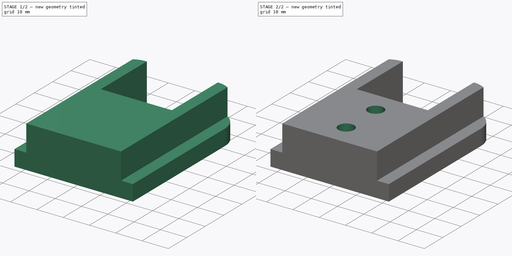
[diagram: build sequence overview — one tinted view per stage of 2, left to right]
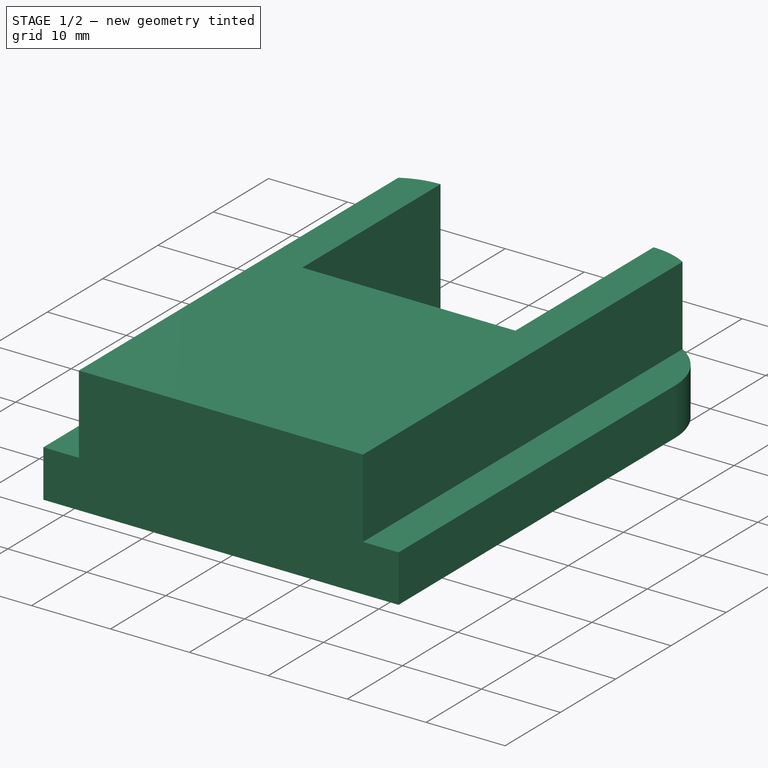
[diagram: stage 1 of 2 — iso view after this stage's code; geometry added in this stage tinted green]
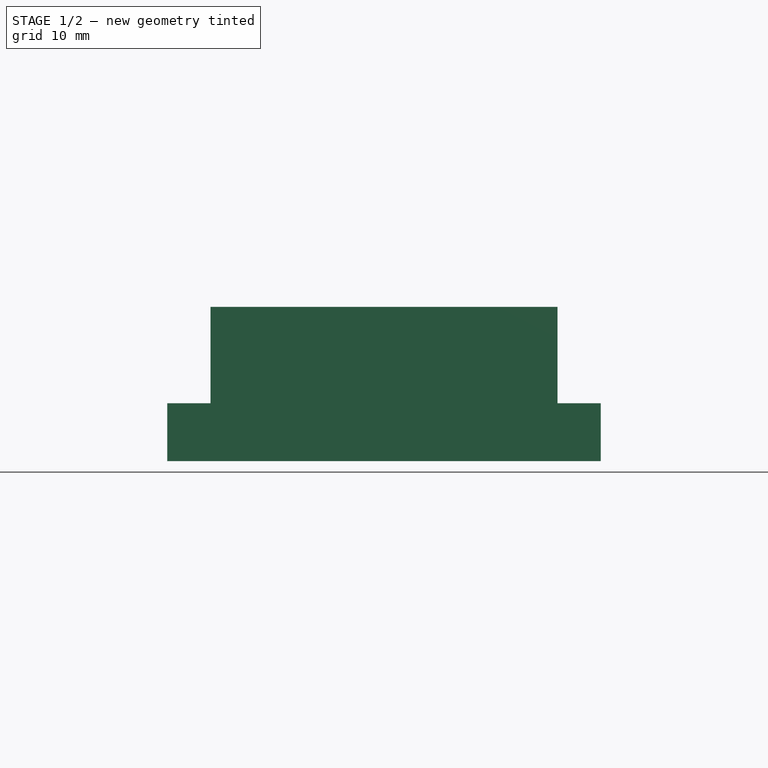
[diagram: stage 1 of 2 — front view after this stage's code; geometry added in this stage tinted green]
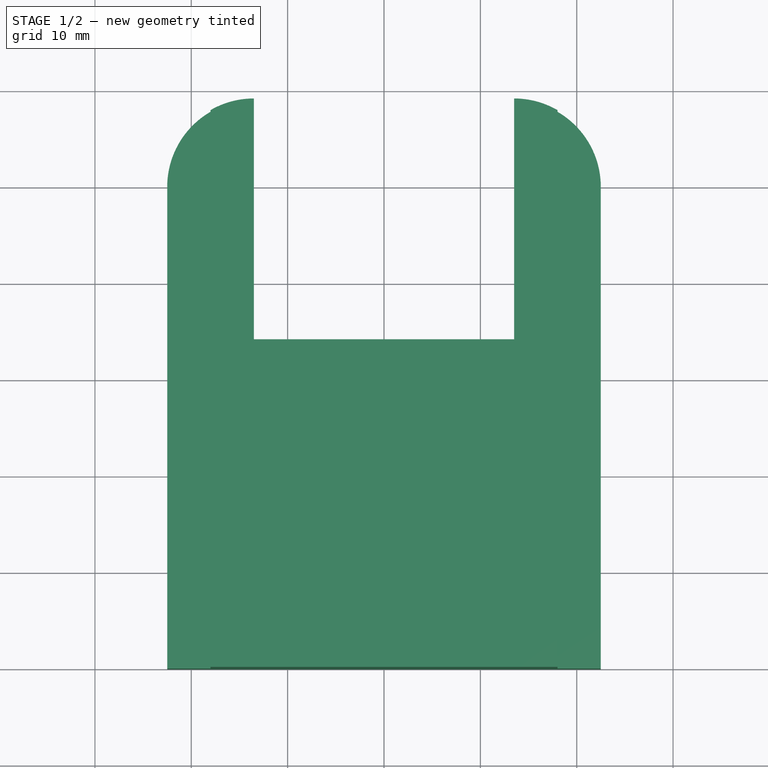
[diagram: stage 1 of 2 — top view after this stage's code; geometry added in this stage tinted green]
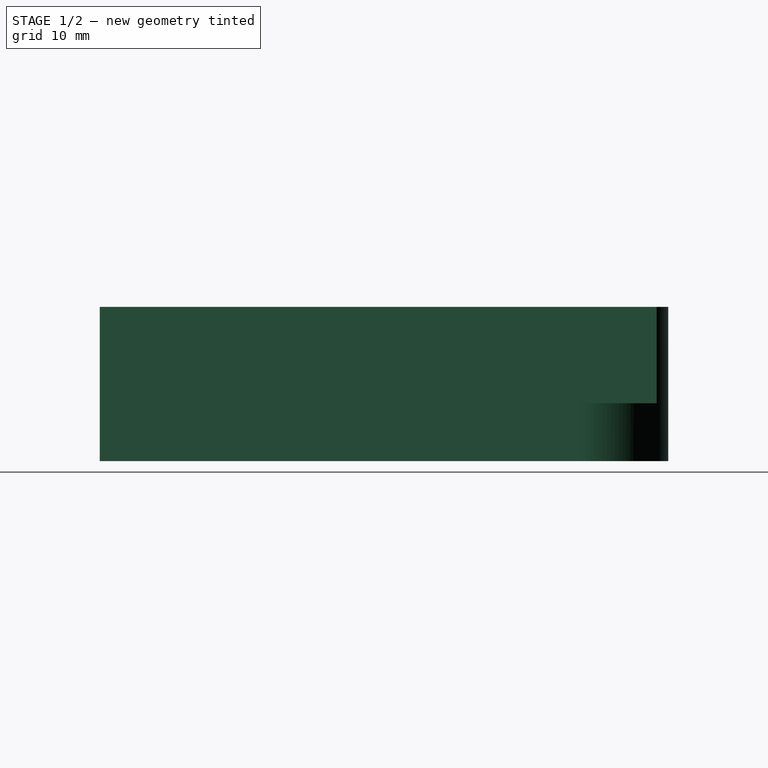
[diagram: stage 1 of 2 — right view after this stage's code; geometry added in this stage tinted green]
FCSTD DOCUMENT  (FreeCAD 0.20R29603 (Git))
Label: MilwaukeeToolHolder
License: All rights reserved
LicenseURL: http://en.wikipedia.org/wiki/All_rights_reserved
objects: Sketcher::SketchObject×3, PartDesign::Pad×2, PartDesign::Hole×1, PartDesign::LinearPattern×1, PartDesign::Body×1
note: 11 computed .brp shape members not serialized (recipe doc carries the construction recipe); baked Part::Feature solids carry a one-line shape summary decoded from their .brp

FEATURE [Sketcher::SketchObject] Sketch
  FullyConstrained = false
  sketch-geometry (9):
    g0: LineSegment StartX=-22.5 StartY=0 StartZ=0 EndX=22.5 EndY=0 EndZ=0
    g1: LineSegment StartX=22.5 StartY=0 StartZ=0 EndX=22.5 EndY=50 EndZ=0
    g2: LineSegment StartX=22.5 StartY=50 StartZ=0 EndX=-22.5 EndY=50 EndZ=0
    g3: LineSegment StartX=-22.5 StartY=50 StartZ=0 EndX=-22.5 EndY=0 EndZ=0
    g4: ArcOfCircle CenterX=-13.5 CenterY=50 CenterZ=0 NormalX=0 NormalY=0 NormalZ=1 AngleXU=0 Radius=9 StartAngle=1.5708 EndAngle=3.14159
    g5: ArcOfCircle CenterX=13.5 CenterY=50 CenterZ=0 NormalX=0 NormalY=0 NormalZ=1 AngleXU=0 Radius=9 StartAngle=7e-16 EndAngle=1.5708
    g6: LineSegment StartX=13.5 StartY=59 StartZ=0 EndX=13.5 EndY=34 EndZ=0
    g7: LineSegment StartX=13.5 StartY=34 StartZ=0 EndX=-13.5 EndY=34 EndZ=0
    g8: LineSegment StartX=-13.5 StartY=34 StartZ=0 EndX=-13.5 EndY=59 EndZ=0
  constraints (26):
    c: Coincident(g0,g1)
    c: Coincident(g1,g2)
    c: Coincident(g3,g0)
    c: Horizontal(g2)
    c: Vertical(g1)
    c: Vertical(g3)
    c: PointOnObject(g0,g-1)
    c: DistanceX(g0,g0) = 45
    c: Symmetric(g0,g0,g-2)
    c: DistanceY(g3,g3) = 50
    c: PointOnObject(g4,g2)
    c: Radius(g4) = 9
    c: Tangent(g4,g3) = -1.5708
    c: Vertical(g4,g4)
    c: PointOnObject(g5,g2)
    c: PointOnObject(g5,g1)
    c: Tangent(g5,g1,g5) = -1.5708
    c: Symmetric(g4,g5,g-2)
    c: Coincident(g6,g7)
    c: Coincident(g7,g8)
    c: Horizontal(g7)
    c: Vertical(g6)
    c: Vertical(g8)
    c: Coincident(g6,g5)
    c: DistanceY(g6,g5) = 25
    c: Coincident(g8,g4)
FEATURE [PartDesign::Pad] Pad  label="BatteryLid"
  Direction = (0,0,1)
  Length = 6
  Length2 = 10
  Profile = -> Sketch
  ReferenceAxis = -> Sketch [N_Axis]
  Type = 0
FEATURE [Sketcher::SketchObject] Sketch001
  ExternalGeometry = -> [Pad]
  FullyConstrained = true
  MapMode = 5
  Placement = pos=(0,0,6) rot=(0,0,1;0rad)
  Support = -> [Pad]
  sketch-geometry (11):
    g0: LineSegment StartX=-18 StartY=0 StartZ=0 EndX=18 EndY=0 EndZ=0
    g1: LineSegment StartX=18 StartY=0 StartZ=0 EndX=18 EndY=34 EndZ=0
    g2: LineSegment StartX=18 StartY=34 StartZ=0 EndX=-18 EndY=34 EndZ=0
    g3: LineSegment StartX=-18 StartY=34 StartZ=0 EndX=-18 EndY=0 EndZ=0
    g4: LineSegment StartX=-13.5 StartY=59 StartZ=0 EndX=-13.5 EndY=34 EndZ=0
    g5: LineSegment StartX=13.5 StartY=34 StartZ=0 EndX=13.5 EndY=59 EndZ=0
    g6: LineSegment StartX=18 StartY=57.7942 StartZ=0 EndX=18 EndY=34 EndZ=0
    g7: LineSegment StartX=-18 StartY=57.7942 StartZ=0 EndX=-18 EndY=34 EndZ=0
    g8: ArcOfCircle CenterX=-13.5 CenterY=50 CenterZ=0 NormalX=0 NormalY=0 NormalZ=1 AngleXU=0 Radius=9 StartAngle=1.5708 EndAngle=2.0944
    g9: ArcOfCircle CenterX=13.5 CenterY=50 CenterZ=0 NormalX=0 NormalY=0 NormalZ=1 AngleXU=0 Radius=9 StartAngle=1.0472 EndAngle=1.5708
    g10: LineSegment StartX=-13.5 StartY=34 StartZ=0 EndX=13.5 EndY=34 EndZ=0
  constraints (27):
    c: Coincident(g0,g1)
    c: Coincident(g1,g2)
    c: Coincident(g2,g3)
    c: Coincident(g3,g0)
    c: Horizontal(g2)
    c: Vertical(g1)
    c: Vertical(g3)
    c: PointOnObject(g0,g-1)
    c: Symmetric(g0,g0,g-2)
    c: DistanceX(g0,g0) = 36
    c: DistanceY(g2,g-3) = 0
    c: Coincident(g4,g-3)
    c: Coincident(g5,g-3)
    c: Coincident(g6,g1)
    c: Vertical(g6)
    c: Coincident(g7,g3)
    c: Vertical(g7)
    c: Coincident(g8,g-4)
    c: Coincident(g8,g7)
    c: Coincident(g8,g4)
    c: Coincident(g9,g-5)
    c: Coincident(g9,g6)
    c: Coincident(g9,g5)
    c: Coincident(g5,g-5)
    c: Coincident(g4,g-4)
    c: Coincident(g10,g4)
    c: Coincident(g10,g5)
FEATURE [PartDesign::Pad] Pad001  label="Spacer"
  BaseFeature = -> Pad
  Direction = (0,0,1)
  Length = 10
  Length2 = 10
  Profile = -> Sketch001
  ReferenceAxis = -> Sketch001 [N_Axis]
  Type = 0
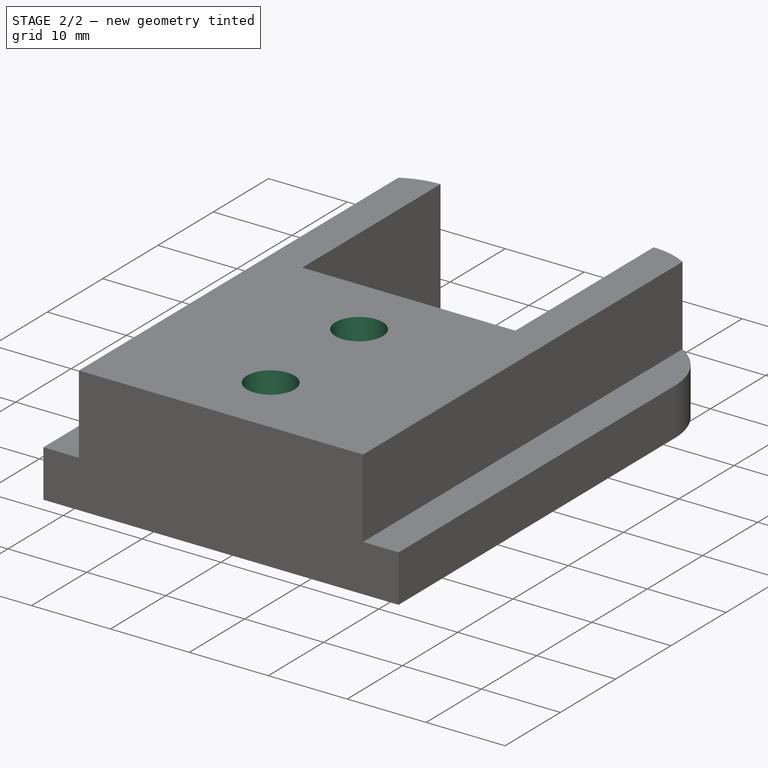
[diagram: stage 2 of 2 — iso view after this stage's code; geometry added in this stage tinted green]
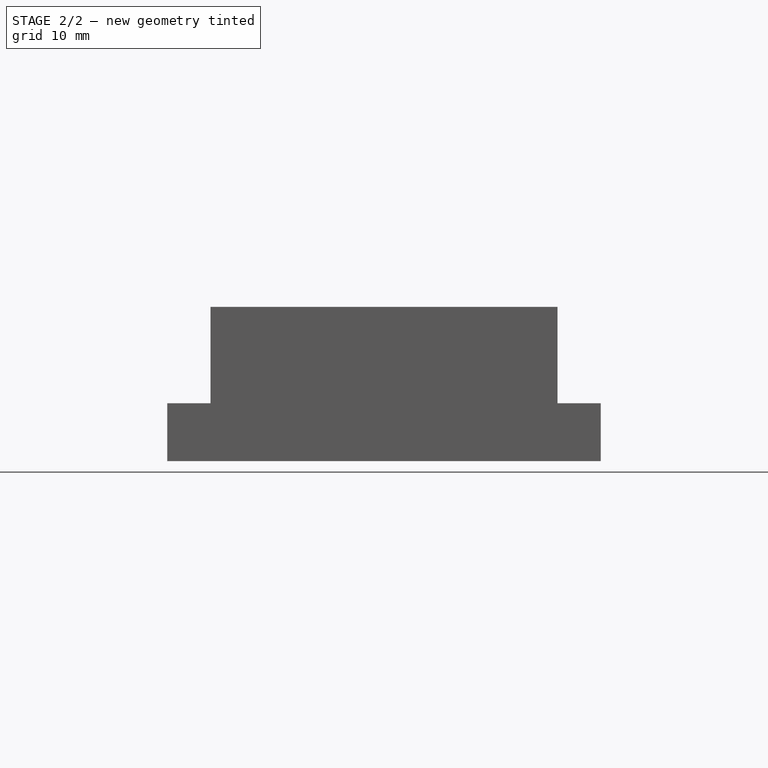
[diagram: stage 2 of 2 — front view after this stage's code; geometry added in this stage tinted green]
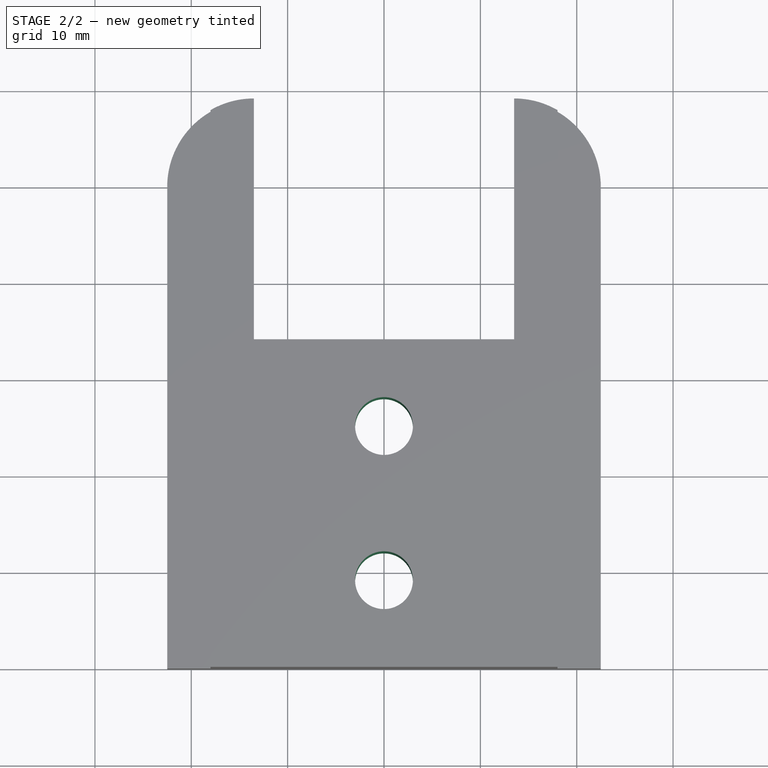
[diagram: stage 2 of 2 — top view after this stage's code; geometry added in this stage tinted green]
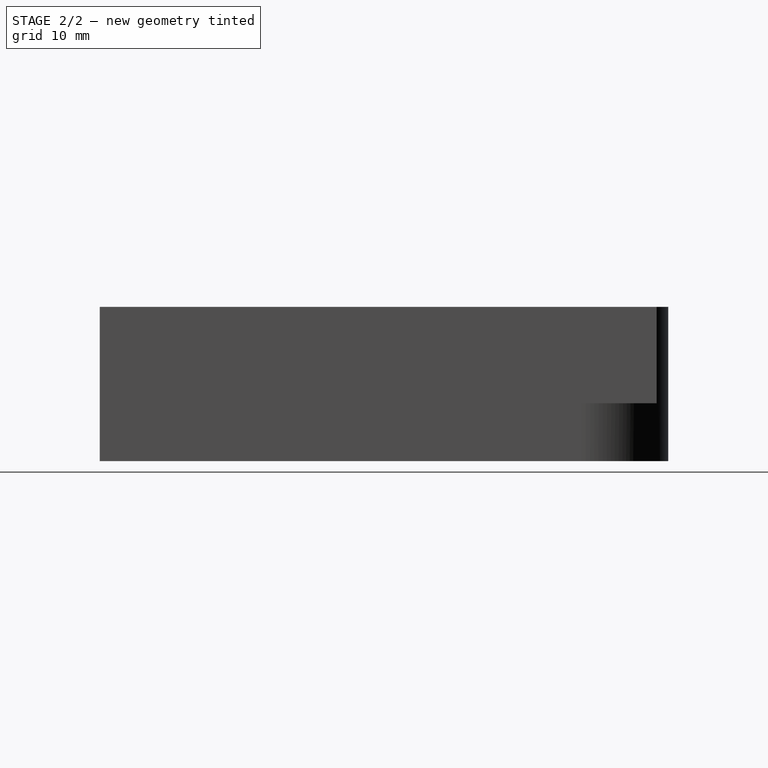
[diagram: stage 2 of 2 — right view after this stage's code; geometry added in this stage tinted green]
FEATURE [Sketcher::SketchObject] Sketch002
  FullyConstrained = true
  MapMode = 5
  Placement = pos=(0,0,0) rot=(1,0,0;3.14159rad)
  Support = -> [Pad001]
  sketch-geometry (1):
    g0: Circle CenterX=0 CenterY=-9 CenterZ=0 NormalX=0 NormalY=0 NormalZ=1 AngleXU=0 Radius=3
  constraints (3):
    c: PointOnObject(g0,g-2)
    c: Diameter(g0) = 6
    c: DistanceY(g0,g-1) = 9
FEATURE [PartDesign::Hole] Hole
  BaseFeature = -> Pad001
  CustomThreadClearance = 0
  Depth = 25
  DepthType = 0
  Diameter = 6
  DrillForDepth = false
  DrillPoint = 1
  DrillPointAngle = 118
  HoleCutCountersinkAngle = 90
  HoleCutCustomValues = false
  HoleCutDepth = 0
  HoleCutDiameter = 12
  HoleCutType = 2
  ModelThread = false
  Profile = -> Sketch002
  Tapered = false
  TaperedAngle = 90
  ThreadClass = 0
  ThreadDepth = 25
  ThreadDepthType = 0
  ThreadDirection = 0
  ThreadFit = 0
  ThreadSize = 0
  ThreadType = 0
  Threaded = false
  UseCustomThreadClearance = false
FEATURE [PartDesign::LinearPattern] LinearPattern
  BaseFeature = -> Hole
  Direction = -> Sketch002 [V_Axis]
  Length = 16
  Occurrences = 2
  Originals = -> [Hole]
  Reversed = true
FEATURE [PartDesign::Body] Body  label="MilwaukeeToolHolder"
  Group = -> [Sketch,Pad,Sketch001,Pad001,Sketch002,Hole,LinearPattern]
  Origin = -> Origin
  Tip = -> LinearPattern
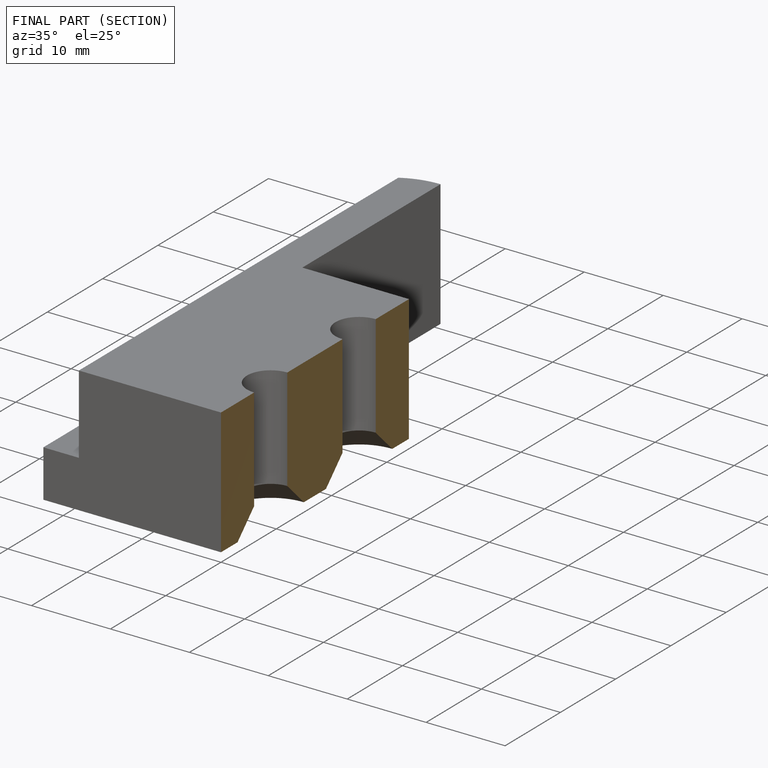
[diagram: finished part — half-section view (interior)]
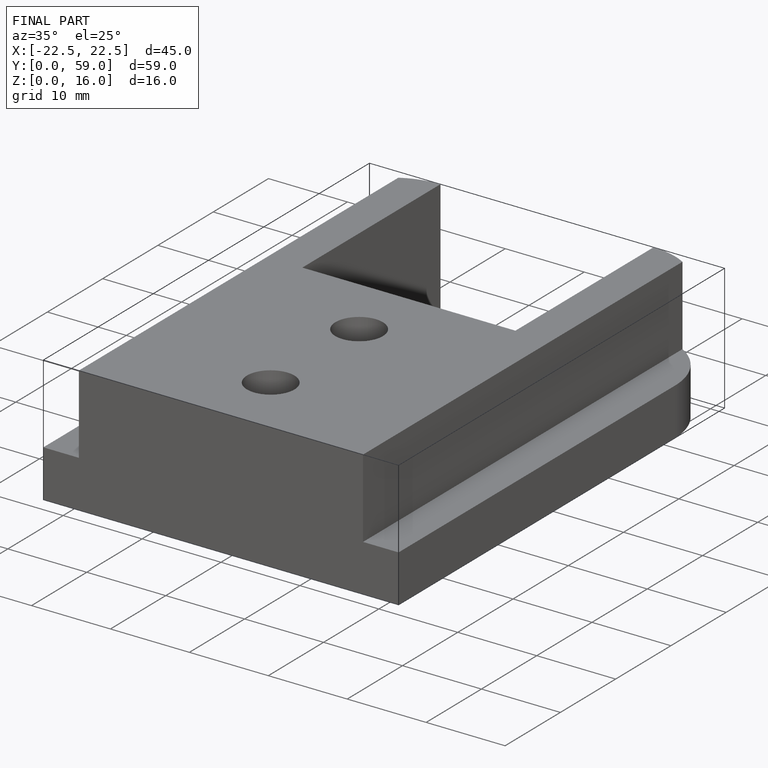
[diagram: finished part — iso view with bounding-box wireframe]
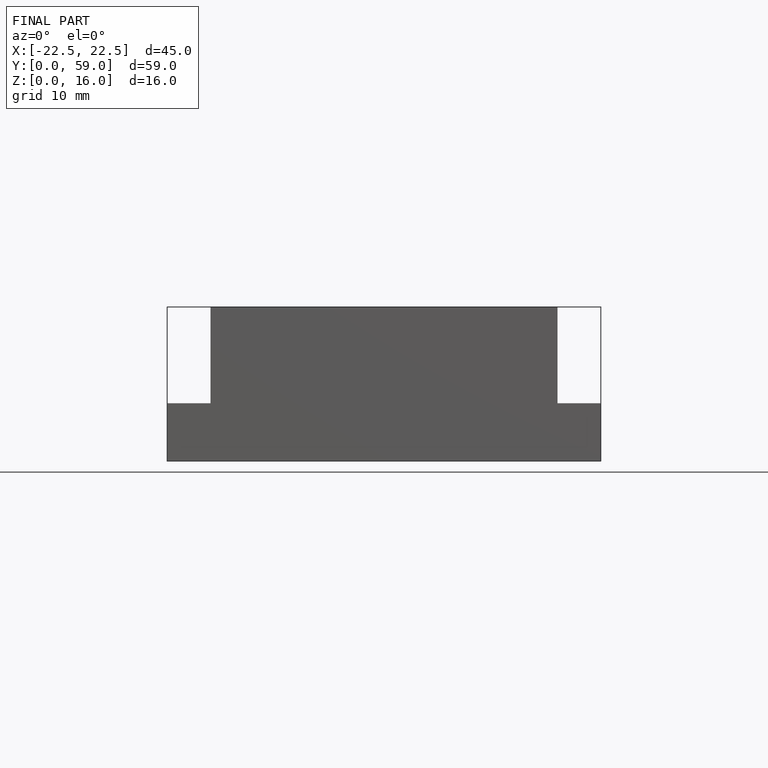
[diagram: finished part — front view with bounding-box wireframe]
